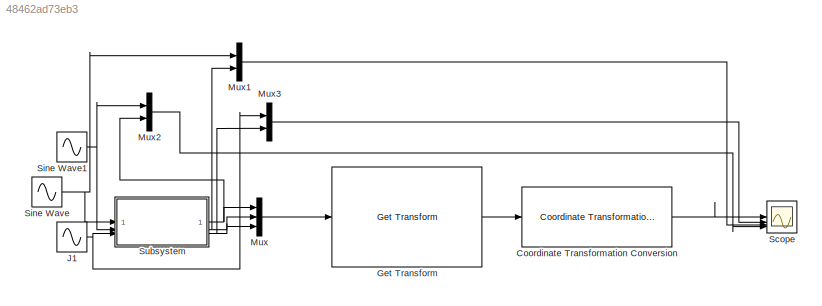
MODEL slx_48462ad73eb3
KIND model
CONFIG AbsTol = auto
CONFIG EnableMultiTasking = off
CONFIG FixedStep = auto
CONFIG MaxStep = auto
CONFIG MinStep = auto
CONFIG RelTol = 1e-3
CONFIG SampleTimeConstraint = Unconstrained
CONFIG SolverName = VariableStepAuto
CONFIG StartTime = 0.0
CONFIG StopTime = 10.0
BLOCK [Reference] Coordinate Transformation Conversion  REF=robotcorelib/Coordinate Transformation Conversion
  LibrarySourceBlock = robotutilslib/Coordinate Transformation Conversion
  SourceBlock = robotcorelib/Coordinate Transformation Conversion
  SourceType = robotics.slcore.internal.block.CoordinateTransformationConversion
BLOCK [Reference] Get Transform  REF=robotmaniplib/Get Transform
  SourceBlock = robotmaniplib/Get Transform
  SourceType = Get Transform
BLOCK [Sin] J1
  Amplitude = 1.3
  SampleTime = 0
BLOCK [Mux] Mux
  DisplayOption = bar
  Inputs = 3
BLOCK [Mux] Mux1
  DisplayOption = bar
  Inputs = 2
BLOCK [Mux] Mux2
  DisplayOption = bar
  Inputs = 2
BLOCK [Mux] Mux3
  DisplayOption = bar
  Inputs = 2
BLOCK [Scope] Scope
  Floating = off
  NumInputPorts = 4
  ScopeSpecificationString = Simulink.scopes.TimeScopeBlockCfg('CurrentConfiguration', extmgr.ConfigurationSet(extmgr.Configuration('Core','General UI',true),extmgr.Configuration('Core','Source UI',true),extmgr.Configuration('Sources','WiredSimulink',true,'SampleTime','1'),extmgr.Configuration('Visuals','Time Domain',true,'SerializedDisplays',{struct('MinYLimReal','-0.26099','MaxYLimReal','0.30678','YLabelReal','','MinYLimMag...<+3477ch>
BLOCK [Sin] Sine Wave
  Amplitude = 0.6
  Frequency = 0.7
  SampleTime = 0
BLOCK [Sin] Sine Wave1
  Amplitude = 1.7
  SampleTime = 0
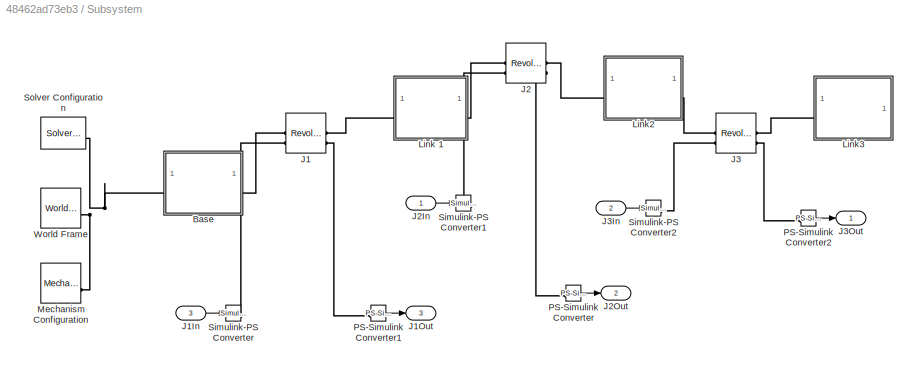
BLOCK [SubSystem] Subsystem
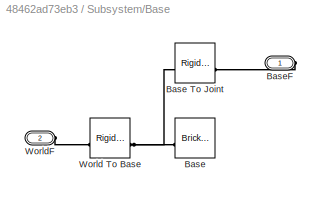
BLOCK [SubSystem] Subsystem/Base
BLOCK [Reference] Subsystem/Base/Base  REF=sm_lib/Body Elements/Brick Solid
  SourceBlock = sm_lib/Body Elements/Brick Solid
  SourceType = Brick Solid
BLOCK [Reference] Subsystem/Base/Base To Joint  REF=sm_lib/Frames and
Transforms/Rigid
Transform
  SourceBlock = sm_lib/Frames and\nTransforms/Rigid\nTransform
  SourceType = Rigid\nTransform
BLOCK [PMIOPort] Subsystem/Base/BaseF
  Side = Right
BLOCK [Reference] Subsystem/Base/World To Base  REF=sm_lib/Frames and
Transforms/Rigid
Transform
  SourceBlock = sm_lib/Frames and\nTransforms/Rigid\nTransform
  SourceType = Rigid\nTransform
BLOCK [PMIOPort] Subsystem/Base/WorldF
  Port = 2
  Side = Left
BLOCK [Reference] Subsystem/J1  REF=sm_lib/Joints/Revolute Joint
  SourceBlock = sm_lib/Joints/Revolute Joint
  SourceType = Revolute Joint
BLOCK [Inport] Subsystem/J1In
  Port = 3
BLOCK [Outport] Subsystem/J1Out
  Port = 3
BLOCK [Reference] Subsystem/J2  REF=sm_lib/Joints/Revolute Joint
  SourceBlock = sm_lib/Joints/Revolute Joint
  SourceType = Revolute Joint
BLOCK [Inport] Subsystem/J2In
BLOCK [Outport] Subsystem/J2Out
  Port = 2
BLOCK [Reference] Subsystem/J3  REF=sm_lib/Joints/Revolute Joint
  SourceBlock = sm_lib/Joints/Revolute Joint
  SourceType = Revolute Joint
BLOCK [Inport] Subsystem/J3In
  Port = 2
BLOCK [Outport] Subsystem/J3Out
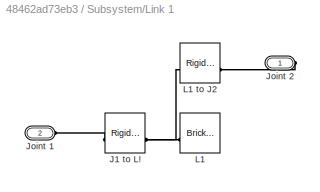
BLOCK [SubSystem] Subsystem/Link 1
BLOCK [Reference] Subsystem/Link 1/J1 to L!  REF=sm_lib/Frames and
Transforms/Rigid
Transform
  SourceBlock = sm_lib/Frames and\nTransforms/Rigid\nTransform
  SourceType = Rigid\nTransform
BLOCK [PMIOPort] Subsystem/Link 1/Joint 1
  Port = 2
  Side = Left
BLOCK [PMIOPort] Subsystem/Link 1/Joint 2
  Side = Right
BLOCK [Reference] Subsystem/Link 1/L1  REF=sm_lib/Body Elements/Brick Solid
  SourceBlock = sm_lib/Body Elements/Brick Solid
  SourceType = Brick Solid
BLOCK [Reference] Subsystem/Link 1/L1 to J2  REF=sm_lib/Frames and
Transforms/Rigid
Transform
  SourceBlock = sm_lib/Frames and\nTransforms/Rigid\nTransform
  SourceType = Rigid\nTransform
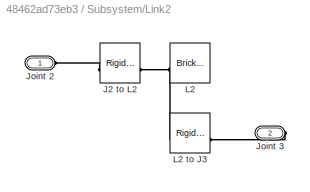
BLOCK [SubSystem] Subsystem/Link2
BLOCK [Reference] Subsystem/Link2/J2 to L2  REF=sm_lib/Frames and
Transforms/Rigid
Transform
  SourceBlock = sm_lib/Frames and\nTransforms/Rigid\nTransform
  SourceType = Rigid\nTransform
BLOCK [PMIOPort] Subsystem/Link2/Joint 2
  Side = Left
BLOCK [PMIOPort] Subsystem/Link2/Joint 3
  Port = 2
  Side = Right
BLOCK [Reference] Subsystem/Link2/L2  REF=sm_lib/Body Elements/Brick Solid
  SourceBlock = sm_lib/Body Elements/Brick Solid
  SourceType = Brick Solid
BLOCK [Reference] Subsystem/Link2/L2 to J3  REF=sm_lib/Frames and
Transforms/Rigid
Transform
  SourceBlock = sm_lib/Frames and\nTransforms/Rigid\nTransform
  SourceType = Rigid\nTransform
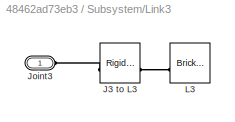
BLOCK [SubSystem] Subsystem/Link3
BLOCK [Reference] Subsystem/Link3/J3 to L3  REF=sm_lib/Frames and
Transforms/Rigid
Transform
  SourceBlock = sm_lib/Frames and\nTransforms/Rigid\nTransform
  SourceType = Rigid\nTransform
BLOCK [PMIOPort] Subsystem/Link3/Joint3
  Side = Left
BLOCK [Reference] Subsystem/Link3/L3  REF=sm_lib/Body Elements/Brick Solid
  SourceBlock = sm_lib/Body Elements/Brick Solid
  SourceType = Brick Solid
BLOCK [Reference] Subsystem/Mechanism Configuration  REF=sm_lib/Utilities/Mechanism
Configuration
  SourceBlock = sm_lib/Utilities/Mechanism\nConfiguration
  SourceType = Mechanism\nConfiguration
BLOCK [Reference] Subsystem/PS-Simulink Converter  REF=nesl_utility/PS-Simulink
Converter
  SourceBlock = nesl_utility/PS-Simulink\nConverter
  SourceType = PS-Simulink\nConverter
BLOCK [Reference] Subsystem/PS-Simulink Converter1  REF=nesl_utility/PS-Simulink
Converter
  SourceBlock = nesl_utility/PS-Simulink\nConverter
  SourceType = PS-Simulink\nConverter
BLOCK [Reference] Subsystem/PS-Simulink Converter2  REF=nesl_utility/PS-Simulink
Converter
  SourceBlock = nesl_utility/PS-Simulink\nConverter
  SourceType = PS-Simulink\nConverter
BLOCK [Reference] Subsystem/Simulink-PS Converter  REF=nesl_utility/Simulink-PS
Converter
  SourceBlock = nesl_utility/Simulink-PS\nConverter
  SourceType = Simulink-PS\nConverter
BLOCK [Reference] Subsystem/Simulink-PS Converter1  REF=nesl_utility/Simulink-PS
Converter
  SourceBlock = nesl_utility/Simulink-PS\nConverter
  SourceType = Simulink-PS\nConverter
BLOCK [Reference] Subsystem/Simulink-PS Converter2  REF=nesl_utility/Simulink-PS
Converter
  SourceBlock = nesl_utility/Simulink-PS\nConverter
  SourceType = Simulink-PS\nConverter
BLOCK [Reference] Subsystem/Solver Configuration  REF=nesl_utility/Solver
Configuration
  SourceBlock = nesl_utility/Solver\nConfiguration
  SourceType = Solver\nConfiguration
BLOCK [Reference] Subsystem/World Frame  REF=sm_lib/Frames and
Transforms/World Frame
  SourceBlock = sm_lib/Frames and\nTransforms/World Frame
  SourceType = World Frame
LINE Coordinate Transformation Conversion:1 -> Scope:1
LINE Get Transform:1 -> Coordinate Transformation Conversion:1
NET J1:1 -> Mux3:1, Subsystem:3
LINE Mux1:1 -> Scope:3
LINE Mux2:1 -> Scope:4
LINE Mux3:1 -> Scope:2
LINE Mux:1 -> Get Transform:1
NET Sine Wave1:1 -> Mux2:1, Subsystem:2
NET Sine Wave:1 -> Mux1:1, Subsystem:1
LINE Subsystem/J1In:1 -> Subsystem/Simulink-PS Converter:1
LINE Subsystem/J2In:1 -> Subsystem/Simulink-PS Converter1:1
LINE Subsystem/J3In:1 -> Subsystem/Simulink-PS Converter2:1
LINE Subsystem/PS-Simulink Converter1:1 -> Subsystem/J1Out:1
LINE Subsystem/PS-Simulink Converter2:1 -> Subsystem/J3Out:1
LINE Subsystem/PS-Simulink Converter:1 -> Subsystem/J2Out:1
NET Subsystem:1 -> Mux2:2, Mux:1
NET Subsystem:2 -> Mux1:2, Mux:2
NET Subsystem:3 -> Mux3:2, Mux:3
PNET net1: Subsystem/Base/Base To Joint:LConn1 -- Subsystem/Base/Base:RConn1 -- Subsystem/Base/World To Base:RConn1
PLINE Subsystem/Base/Base To Joint:RConn1 -- Subsystem/Base/BaseF:RConn1
PLINE Subsystem/Base/World To Base:LConn1 -- Subsystem/Base/WorldF:RConn1
PNET net2: Subsystem/Base:LConn1 -- Subsystem/Mechanism Configuration:RConn1 -- Subsystem/Solver Configuration:RConn1 -- Subsystem/World Frame:RConn1
PLINE Subsystem/Base:RConn1 -- Subsystem/J1:LConn1
PLINE Subsystem/J1:LConn2 -- Subsystem/Simulink-PS Converter:RConn1
PLINE Subsystem/J1:RConn1 -- Subsystem/Link 1:LConn1
PLINE Subsystem/J1:RConn2 -- Subsystem/PS-Simulink Converter1:LConn1
PLINE Subsystem/J2:LConn1 -- Subsystem/Link 1:RConn1
PLINE Subsystem/J2:LConn2 -- Subsystem/Simulink-PS Converter1:RConn1
PLINE Subsystem/J2:RConn1 -- Subsystem/Link2:LConn1
PLINE Subsystem/J2:RConn2 -- Subsystem/PS-Simulink Converter:LConn1
PLINE Subsystem/J3:LConn1 -- Subsystem/Link2:RConn1
PLINE Subsystem/J3:LConn2 -- Subsystem/Simulink-PS Converter2:RConn1
PLINE Subsystem/J3:RConn1 -- Subsystem/Link3:LConn1
PLINE Subsystem/J3:RConn2 -- Subsystem/PS-Simulink Converter2:LConn1
PLINE Subsystem/Link 1/J1 to L!:LConn1 -- Subsystem/Link 1/Joint 1:RConn1
PNET net3: Subsystem/Link 1/J1 to L!:RConn1 -- Subsystem/Link 1/L1 to J2:LConn1 -- Subsystem/Link 1/L1:RConn1
PLINE Subsystem/Link 1/Joint 2:RConn1 -- Subsystem/Link 1/L1 to J2:RConn1
PLINE Subsystem/Link2/J2 to L2:LConn1 -- Subsystem/Link2/Joint 2:RConn1
PNET net4: Subsystem/Link2/J2 to L2:RConn1 -- Subsystem/Link2/L2 to J3:LConn1 -- Subsystem/Link2/L2:RConn1
PLINE Subsystem/Link2/Joint 3:RConn1 -- Subsystem/Link2/L2 to J3:RConn1
PLINE Subsystem/Link3/J3 to L3:LConn1 -- Subsystem/Link3/Joint3:RConn1
PLINE Subsystem/Link3/J3 to L3:RConn1 -- Subsystem/Link3/L3:RConn1
note: NET lines group one-source signal fan-out (src -> all destinations, sorted); 1:1 wires keep LINE; PNET lines group multi-terminal physical nets as a canonical sorted terminal list (undirected conserving connections); 2-terminal nets keep the pairwise PLINE form
